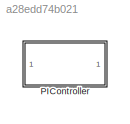
MODEL slx_a28edd74b021
KIND library
CONFIG AbsTol = auto
CONFIG EnableMultiTasking = off
CONFIG FixedStep = auto
CONFIG MaxStep = auto
CONFIG MinStep = auto
CONFIG RelTol = 1e-3
CONFIG SampleTimeConstraint = Unconstrained
CONFIG SolverName = VariableStepAuto
CONFIG StartTime = 0.0
CONFIG StopTime = 10.0
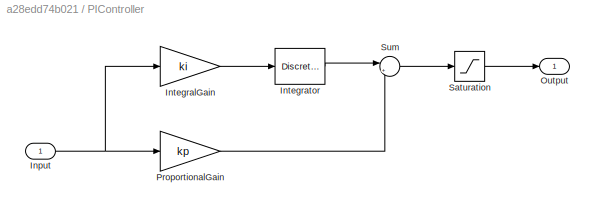
BLOCK [SubSystem] PIController
  AttributesFormatString = %<lo> to %<hi>
  ErrorFcn = dspFilterRealizedInBasicElemsAlgLoopErrFcnCallback
  Tag = FilterWizardSubSystem
  UserDataPersistent = on
BLOCK [Inport] PIController/Input
BLOCK [Gain] PIController/IntegralGain
  Gain = ki
BLOCK [DiscreteIntegrator] PIController/Integrator
  ICPrevOutput = DiscIntNeverNeededParam
  ICPrevScaledInput = DiscIntNeverNeededParam
  LimitOutput = on
  LowerSaturationLimit = lo
  SampleTime = ts
  UpperSaturationLimit = hi
BLOCK [Outport] PIController/Output
  VectorParamsAs1DForOutWhenUnconnected = off
BLOCK [Gain] PIController/ProportionalGain
  Gain = kp
BLOCK [Saturate] PIController/Saturation
  LowerLimit = lo
  UpperLimit = hi
BLOCK [Sum] PIController/Sum
  Inputs = |++
NET PIController/Input:1 -> PIController/IntegralGain:1, PIController/ProportionalGain:1
LINE PIController/IntegralGain:1 -> PIController/Integrator:1
LINE PIController/Integrator:1 -> PIController/Sum:1
LINE PIController/ProportionalGain:1 -> PIController/Sum:2
LINE PIController/Saturation:1 -> PIController/Output:1
LINE PIController/Sum:1 -> PIController/Saturation:1
note: NET lines group one-source signal fan-out (src -> all destinations, sorted); 1:1 wires keep LINE
